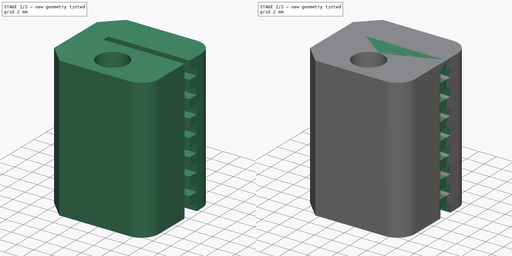
[diagram: build sequence overview — one tinted view per stage of 2, left to right]
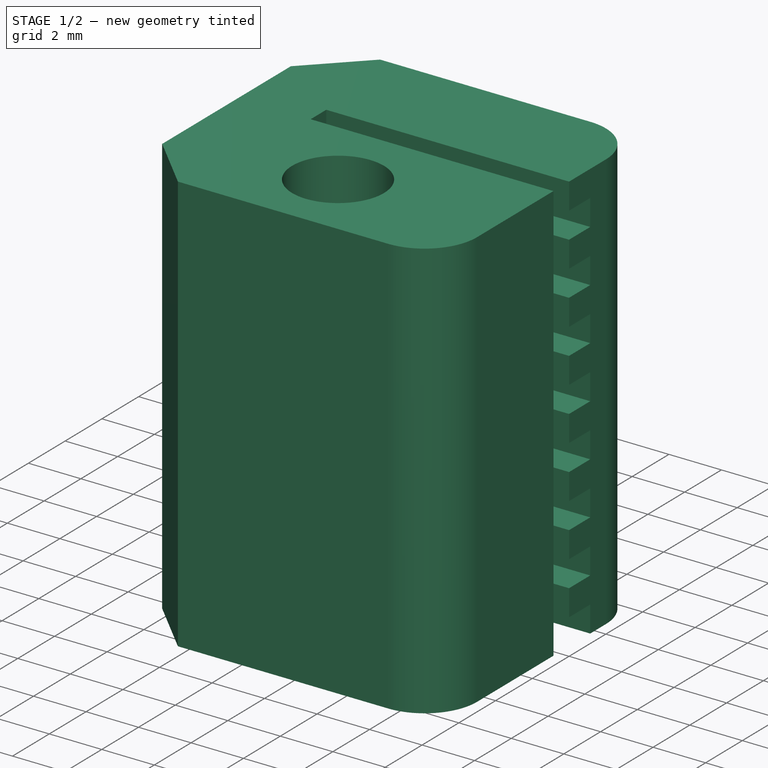
[diagram: stage 1 of 2 — iso view after this stage's code; geometry added in this stage tinted green]
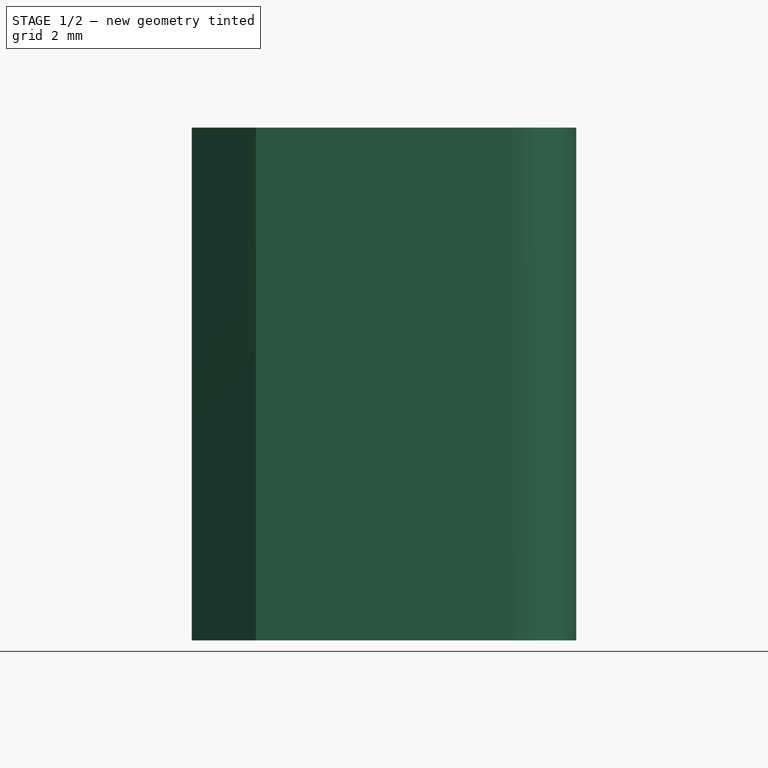
[diagram: stage 1 of 2 — front view after this stage's code; geometry added in this stage tinted green]
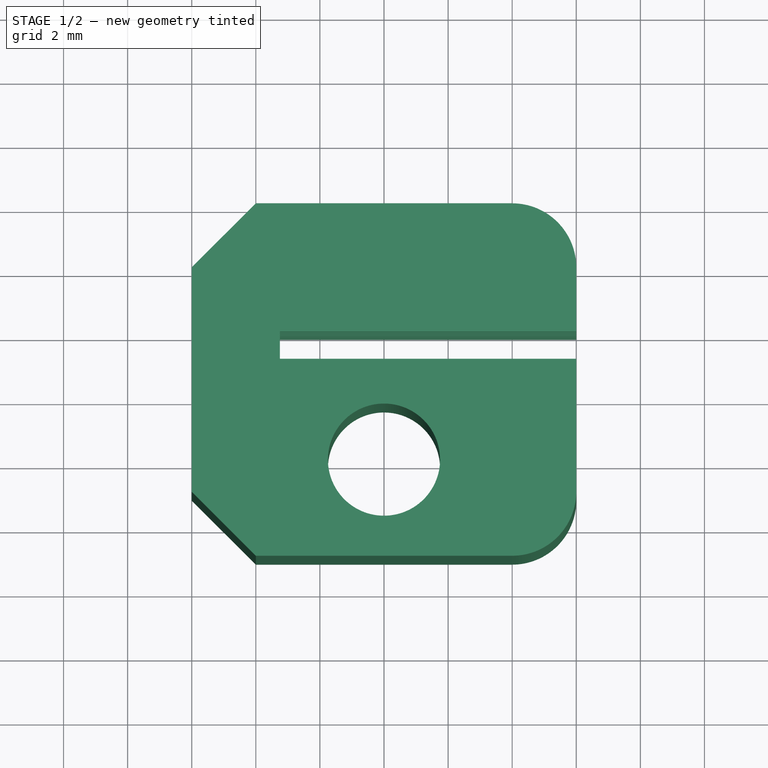
[diagram: stage 1 of 2 — top view after this stage's code; geometry added in this stage tinted green]
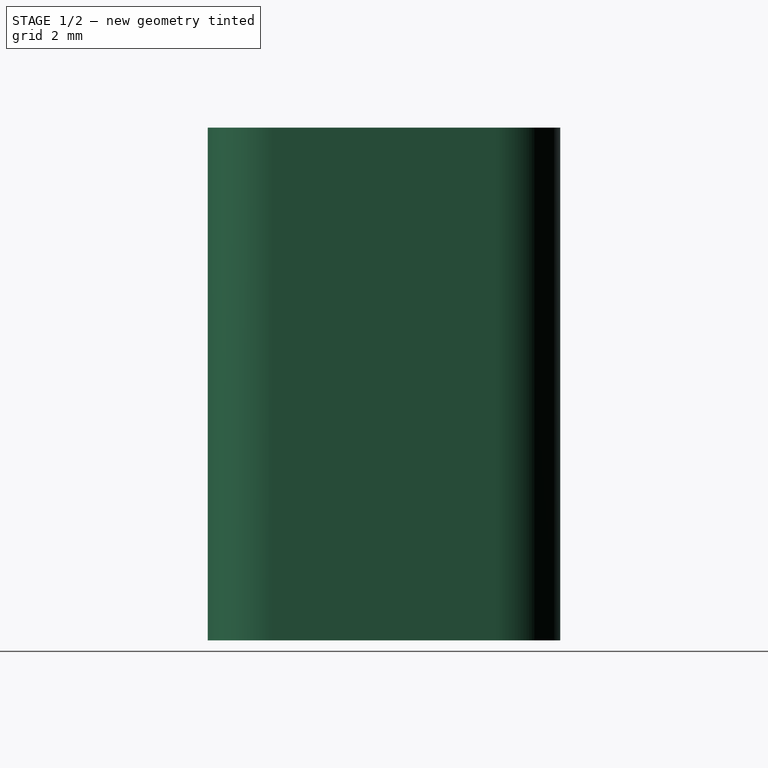
[diagram: stage 1 of 2 — right view after this stage's code; geometry added in this stage tinted green]
FCSTD DOCUMENT  (FreeCAD 1.0R39109 (Git))
Label: belt-clip
License: All rights reserved
LicenseURL: http://en.wikipedia.org/wiki/All_rights_reserved
objects: Sketcher::SketchObject×4, PartDesign::Pad×2, PartDesign::Pocket×2, PartDesign::Body×2
note: 22 computed .brp shape members not serialized (recipe doc carries the construction recipe); baked Part::Feature solids carry a one-line shape summary decoded from their .brp

FEATURE [PartDesign::Body] Body102  label="belt-clip"
  AllowCompound = false
  Group = -> [Sketch162,Pad047,Sketch163,Pocket093]
  Origin = -> Origin236
  Tip = -> Pocket093
FEATURE [Sketcher::SketchObject] Sketch164
  ArcFitTolerance = 0
  AttachmentOffset = pos=(0,0,30) rot=(0,0,1;0rad)
  AttachmentSupport = -> [XY_Plane235]
  FullyConstrained = true
  MakeInternals = false
  MapMode = 5
  Placement = pos=(0,0,30) rot=(0,0,1;0rad)
  sketch-geometry (13):
    g0: LineSegment StartX=-4 StartY=4 StartZ=0 EndX=4 EndY=4 EndZ=0
    g1: LineSegment StartX=6 StartY=2 StartZ=0 EndX=6 EndY=-5 EndZ=0
    g2: LineSegment StartX=4 StartY=-7 StartZ=0 EndX=-4 EndY=-7 EndZ=0
    g3: LineSegment StartX=-6 StartY=-5 StartZ=0 EndX=-6 EndY=2 EndZ=0
    g4: GeomPoint [constr] X=-6 Y=4 Z=0
    g5: ArcOfCircle CenterX=4 CenterY=2 CenterZ=0 NormalX=0 NormalY=0 NormalZ=1 AngleXU=0 Radius=2 StartAngle=0 EndAngle=1.5708
    g6: GeomPoint [constr] X=6 Y=4 Z=0
    g7: ArcOfCircle CenterX=4 CenterY=-5 CenterZ=0 NormalX=0 NormalY=0 NormalZ=1 AngleXU=0 Radius=2 StartAngle=4.71239 EndAngle=6.28319
    g8: GeomPoint [constr] X=6 Y=-7 Z=0
    g9: GeomPoint [constr] X=-6 Y=-7 Z=0
    g10: LineSegment StartX=-6 StartY=-5 StartZ=0 EndX=-4 EndY=-7 EndZ=0
    g11: LineSegment StartX=-6 StartY=2 StartZ=0 EndX=-4 EndY=4 EndZ=0
    g12: Circle CenterX=0 CenterY=-4 CenterZ=0 NormalX=0 NormalY=0 NormalZ=1 AngleXU=0 Radius=1.75
  constraints (32):
    c: Horizontal(g0)
    c: Vertical(g1)
    c: Vertical(g3)
    c: Symmetric(g8,g9,g-2)
    c: DistanceY(g8,g6) = 11
    c: DistanceX(g4,g6) = 12
    c: PointOnObject(g4,g0)
    c: PointOnObject(g4,g3)
    c: PointOnObject(g6,g0)
    c: PointOnObject(g6,g1)
    c: Tangent(g0,g5) = 1.5708
    c: Tangent(g1,g5) = 1.5708
    c: PointOnObject(g8,g1)
    c: PointOnObject(g8,g2)
    c: Tangent(g1,g7) = 1.5708
    c: Tangent(g2,g7) = 1.5708
    c: PointOnObject(g9,g2)
    c: PointOnObject(g9,g3)
    c: Equal(g5,g7)
    c: Radius(g5) = 2
    c: Coincident(g10,g3)
    c: Coincident(g10,g2)
    c: Coincident(g11,g3)
    c: Coincident(g11,g0)
    c: Perpendicular(g11,g10)
    c: Angle(g10) = -0.785398
    c: Vertical(g0,g2)
    c: DistanceX(g10,g10) = 2
    c: DistanceY(g-1,g0) = 4
    c: PointOnObject(g12,g-2)
    c: DistanceY(g12) = -4
    c: Diameter(g12) = 3.5
FEATURE [PartDesign::Pad] Pad048
  Direction = (0,0,1)
  Length = 16
  Length2 = 10
  Profile = -> Sketch164
  ReferenceAxis = -> Sketch164 [N_Axis]
  Reversed = true
  Suppressed = false
  Type = 0
FEATURE [Sketcher::SketchObject] Sketch165
  ArcFitTolerance = 0
  AttachmentOffset = pos=(0,0,-3.25) rot=(0,0,1;0rad)
  AttachmentSupport = -> [YZ_Plane235]
  FullyConstrained = true
  MakeInternals = false
  MapMode = 5
  Placement = pos=(-3.25,0,0) rot=(0.57735,0.57735,0.57735;2.0944rad)
  sketch-geometry (34):
    g0: LineSegment StartX=-0.85 StartY=30 StartZ=0 EndX=-0.85 EndY=14 EndZ=0
    g1: LineSegment StartX=-0.85 StartY=30 StartZ=0 EndX=1e-16 EndY=30 EndZ=0
    g2: LineSegment StartX=1e-16 StartY=30 StartZ=0 EndX=1e-16 EndY=29 EndZ=0
    g3: LineSegment StartX=1e-16 StartY=29 StartZ=0 EndX=1.15 EndY=29 EndZ=0
    g4: LineSegment StartX=1.15 StartY=29 StartZ=0 EndX=1.15 EndY=28 EndZ=0
    g5: LineSegment StartX=1.15 StartY=28 StartZ=0 EndX=0 EndY=28 EndZ=0
    g6: LineSegment StartX=1e-16 StartY=28 StartZ=0 EndX=1e-16 EndY=27 EndZ=0
    g7: LineSegment StartX=1e-16 StartY=27 StartZ=0 EndX=1.15 EndY=27 EndZ=0
    g8: LineSegment StartX=1.15 StartY=27 StartZ=0 EndX=1.15 EndY=26 EndZ=0
    g9: LineSegment StartX=1.15 StartY=26 StartZ=0 EndX=0 EndY=26 EndZ=0
    g10: LineSegment StartX=1e-16 StartY=26 StartZ=0 EndX=1e-16 EndY=25 EndZ=0
    g11: LineSegment StartX=1e-16 StartY=25 StartZ=0 EndX=1.15 EndY=25 EndZ=0
    g12: LineSegment StartX=1.15 StartY=25 StartZ=0 EndX=1.15 EndY=24 EndZ=0
    g13: LineSegment StartX=1.15 StartY=24 StartZ=0 EndX=0 EndY=24 EndZ=0
    g14: LineSegment StartX=1e-16 StartY=24 StartZ=0 EndX=1e-16 EndY=23 EndZ=0
    g15: LineSegment StartX=1e-16 StartY=23 StartZ=0 EndX=1.15 EndY=23 EndZ=0
    g16: LineSegment StartX=1.15 StartY=23 StartZ=0 EndX=1.15 EndY=22 EndZ=0
    g17: LineSegment StartX=1.15 StartY=22 StartZ=0 EndX=0 EndY=22 EndZ=0
    g18: LineSegment StartX=1e-16 StartY=22 StartZ=0 EndX=1e-16 EndY=21 EndZ=0
    g19: LineSegment StartX=1e-16 StartY=21 StartZ=0 EndX=1.15 EndY=21 EndZ=0
    g20: LineSegment StartX=1.15 StartY=21 StartZ=0 EndX=1.15 EndY=20 EndZ=0
    g21: LineSegment StartX=1.15 StartY=20 StartZ=0 EndX=0 EndY=20 EndZ=0
    g22: LineSegment StartX=1e-16 StartY=20 StartZ=0 EndX=1e-16 EndY=19 EndZ=0
    g23: LineSegment StartX=1e-16 StartY=19 StartZ=0 EndX=1.15 EndY=19 EndZ=0
    g24: LineSegment StartX=1.15 StartY=19 StartZ=0 EndX=1.15 EndY=18 EndZ=0
    g25: LineSegment StartX=1.15 StartY=18 StartZ=0 EndX=0 EndY=18 EndZ=0
    g26: LineSegment StartX=1e-16 StartY=18 StartZ=0 EndX=1e-16 EndY=17 EndZ=0
    g27: LineSegment StartX=1e-16 StartY=17 StartZ=0 EndX=1.15 EndY=17 EndZ=0
    g28: LineSegment StartX=1.15 StartY=17 StartZ=0 EndX=1.15 EndY=16 EndZ=0
    g29: LineSegment StartX=1.15 StartY=16 StartZ=0 EndX=0 EndY=16 EndZ=0
    g30: LineSegment StartX=1e-16 StartY=16 StartZ=0 EndX=1e-16 EndY=15 EndZ=0
    g31: LineSegment StartX=1e-16 StartY=15 StartZ=0 EndX=1.15 EndY=15 EndZ=0
    g32: LineSegment StartX=1.15 StartY=15 StartZ=0 EndX=1.15 EndY=14 EndZ=0
    g33: LineSegment StartX=1.15 StartY=14 StartZ=0 EndX=-0.85 EndY=14 EndZ=0
  constraints (102):
    c: Vertical(g0)
    c: Coincident(g1,g0)
    c: Horizontal(g1)
    c: Coincident(g2,g1)
    c: Vertical(g2)
    c: Coincident(g3,g2)
    c: Horizontal(g3)
    c: Coincident(g4,g3)
    c: Vertical(g4)
    c: Coincident(g5,g4)
    c: Horizontal(g5)
    c: Coincident(g6,g5)
    c: Vertical(g6)
    c: Coincident(g7,g6)
    c: Horizontal(g7)
    c: Coincident(g7,g8)
    c: Vertical(g8)
    c: Coincident(g8,g9)
    c: Horizontal(g9)
    c: Coincident(g9,g10)
    c: Vertical(g10)
    c: Coincident(g10,g11)
    c: Horizontal(g11)
    c: Coincident(g11,g12)
    c: Vertical(g12)
    c: Coincident(g12,g13)
    c: Horizontal(g13)
    c: Coincident(g13,g14)
    c: Vertical(g14)
    c: Coincident(g14,g15)
    c: Horizontal(g15)
    c: Coincident(g15,g16)
    c: Vertical(g16)
    c: Coincident(g16,g17)
    c: Horizontal(g17)
    c: Coincident(g17,g18)
    c: Vertical(g18)
    c: Coincident(g18,g19)
    c: Horizontal(g19)
    c: Coincident(g19,g20)
    c: Vertical(g20)
    c: Coincident(g20,g21)
    c: Horizontal(g21)
    c: Coincident(g21,g22)
    c: Vertical(g22)
    c: Coincident(g22,g23)
    c: Horizontal(g23)
    c: Coincident(g23,g24)
    c: Vertical(g24)
    c: Coincident(g24,g25)
    c: Horizontal(g25)
    c: Coincident(g25,g26)
    c: Vertical(g26)
    c: Coincident(g26,g27)
    c: Horizontal(g27)
    c: Coincident(g27,g28)
    c: Vertical(g28)
    c: Coincident(g28,g29)
    c: Horizontal(g29)
    c: Coincident(g29,g30)
    c: Vertical(g30)
    c: Coincident(g30,g31)
    c: Horizontal(g31)
    c: Coincident(g31,g32)
    c: Vertical(g32)
    c: Coincident(g32,g33)
    c: Horizontal(g33)
    c: Equal(g30,g26)
    c: Equal(g26,g22)
    c: Equal(g22,g18)
    c: Equal(g18,g14)
    c: Equal(g14,g10)
    c: Equal(g10,g6)
    c: Equal(g6,g2)
    c: Equal(g4,g8)
    c: Equal(g8,g12)
    c: Equal(g12,g16)
    c: Equal(g16,g20)
    c: Equal(g20,g24)
    c: Equal(g24,g28)
    c: Equal(g28,g32)
    c: Vertical(g2,g6)
    c: Vertical(g6,g10)
    c: Vertical(g10,g14)
    c: Vertical(g14,g18)
    c: Vertical(g18,g22)
    c: Vertical(g22,g26)
    c: Vertical(g26,g30)
    c: Vertical(g4,g8)
    c: Vertical(g8,g12)
    c: Vertical(g12,g16)
    c: Vertical(g16,g20)
    c: Vertical(g20,g24)
    c: Vertical(g24,g28)
    c: Vertical(g28,g32)
    c: DistanceY(g4,g1) = 2
    c: DistanceY(g2,g2) = 1
    c: Coincident(g33,g0)
    c: DistanceY(g0) = 30
    c: DistanceX(g0) = -0.85
    c: DistanceX(g3,g3) = 1.15
    c: DistanceX(g0,g3) = 2
FEATURE [PartDesign::Pocket] Pocket094
  BaseFeature = -> Pad048
  Direction = (-1,0,0)
  Length = 5
  Length2 = 5
  Profile = -> Sketch165
  ReferenceAxis = -> Sketch165 [N_Axis]
  Reversed = true
  Suppressed = false
  Type = 1
FEATURE [PartDesign::Body] Body103  label="belt-clip-reversed-teeth"
  AllowCompound = false
  Group = -> [Sketch164,Pad048,Sketch165,Pocket094]
  Origin = -> Origin237
  Tip = -> Pocket094
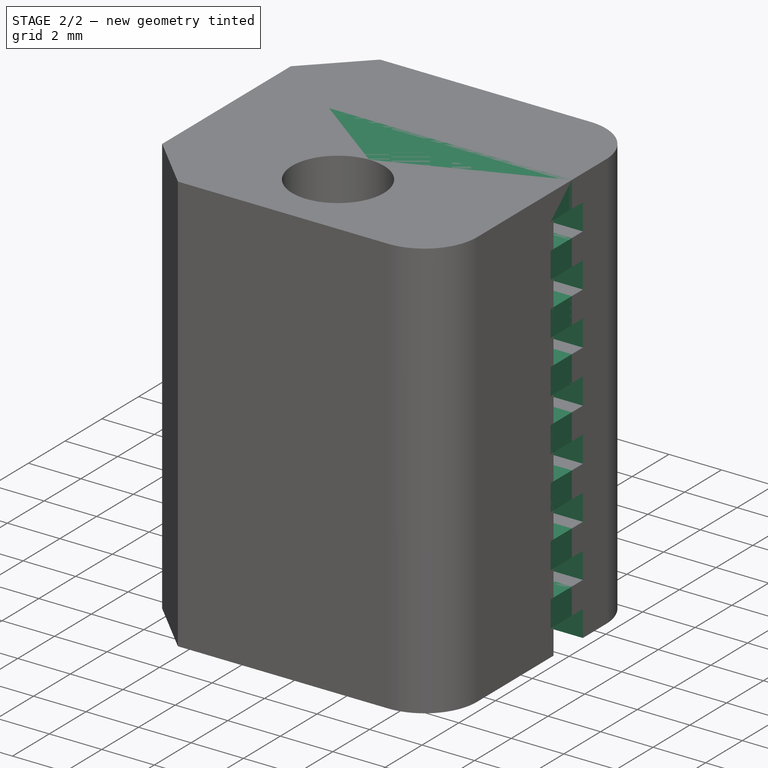
[diagram: stage 2 of 2 — iso view after this stage's code; geometry added in this stage tinted green]
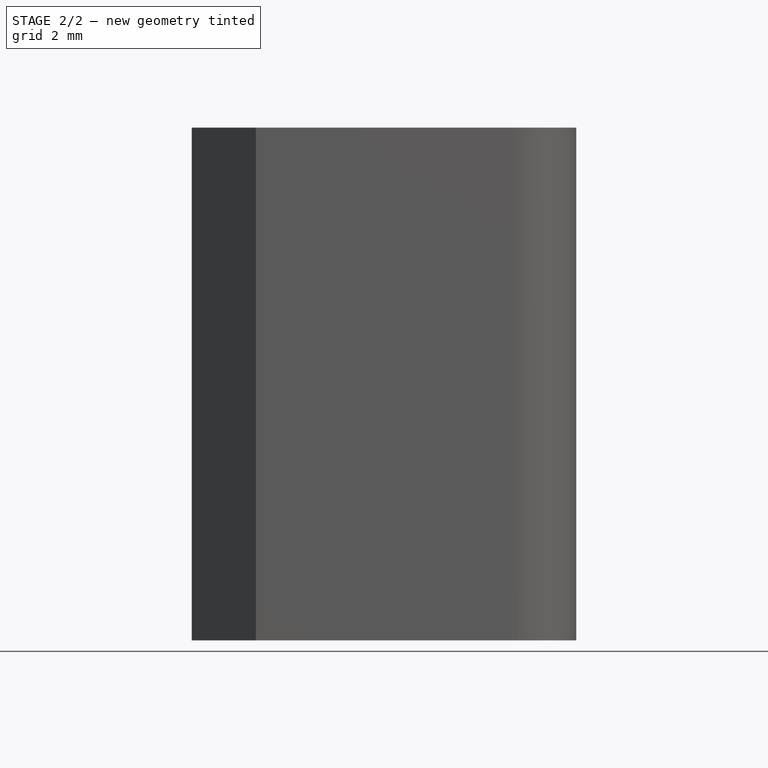
[diagram: stage 2 of 2 — front view after this stage's code; geometry added in this stage tinted green]
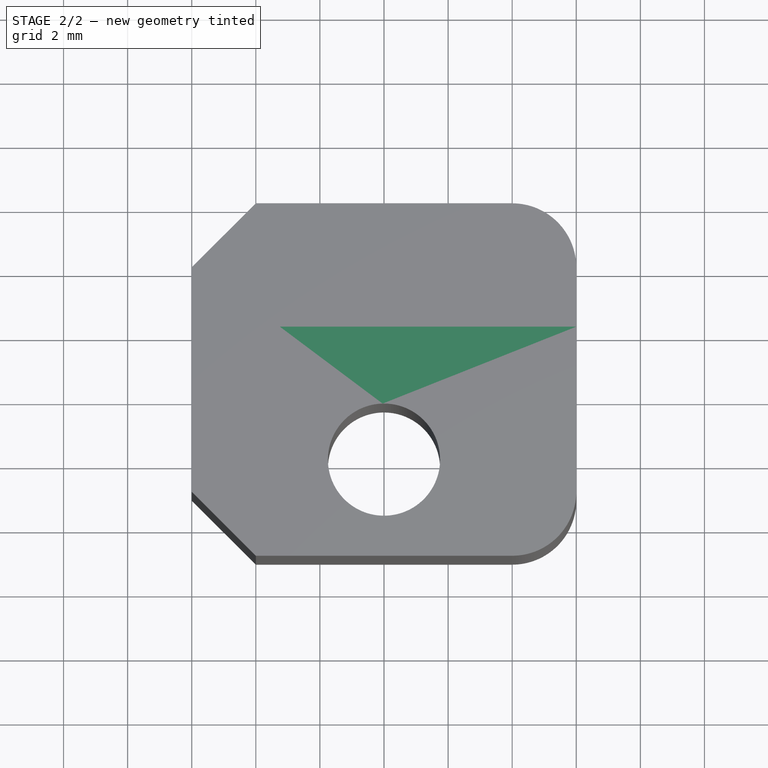
[diagram: stage 2 of 2 — top view after this stage's code; geometry added in this stage tinted green]
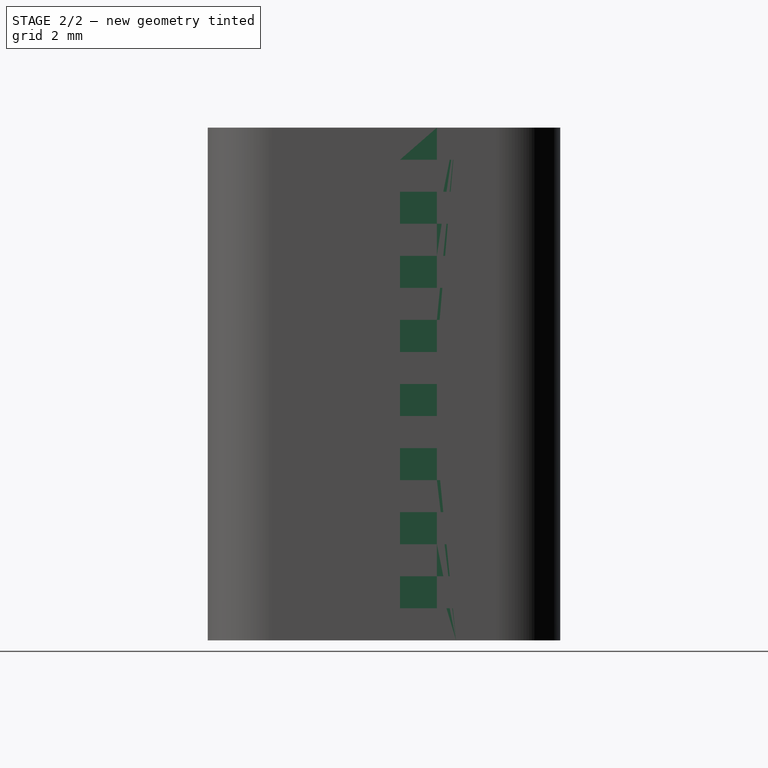
[diagram: stage 2 of 2 — right view after this stage's code; geometry added in this stage tinted green]
FEATURE [Sketcher::SketchObject] Sketch162
  ArcFitTolerance = 0
  AttachmentOffset = pos=(0,0,30) rot=(0,0,1;0rad)
  AttachmentSupport = -> [XY_Plane234]
  FullyConstrained = true
  MakeInternals = false
  MapMode = 5
  Placement = pos=(0,0,30) rot=(0,0,1;0rad)
  sketch-geometry (13):
    g0: LineSegment StartX=-4 StartY=4 StartZ=0 EndX=4 EndY=4 EndZ=0
    g1: LineSegment StartX=6 StartY=2 StartZ=0 EndX=6 EndY=-5 EndZ=0
    g2: LineSegment StartX=4 StartY=-7 StartZ=0 EndX=-4 EndY=-7 EndZ=0
    g3: LineSegment StartX=-6 StartY=-5 StartZ=0 EndX=-6 EndY=2 EndZ=0
    g4: GeomPoint [constr] X=-6 Y=4 Z=0
    g5: ArcOfCircle CenterX=4 CenterY=2 CenterZ=0 NormalX=0 NormalY=0 NormalZ=1 AngleXU=0 Radius=2 StartAngle=0 EndAngle=1.5708
    g6: GeomPoint [constr] X=6 Y=4 Z=0
    g7: ArcOfCircle CenterX=4 CenterY=-5 CenterZ=0 NormalX=0 NormalY=0 NormalZ=1 AngleXU=0 Radius=2 StartAngle=4.71239 EndAngle=6.28319
    g8: GeomPoint [constr] X=6 Y=-7 Z=0
    g9: GeomPoint [constr] X=-6 Y=-7 Z=0
    g10: LineSegment StartX=-6 StartY=-5 StartZ=0 EndX=-4 EndY=-7 EndZ=0
    g11: LineSegment StartX=-6 StartY=2 StartZ=0 EndX=-4 EndY=4 EndZ=0
    g12: Circle CenterX=0 CenterY=-4 CenterZ=0 NormalX=0 NormalY=0 NormalZ=1 AngleXU=0 Radius=1.75
  constraints (32):
    c: Horizontal(g0)
    c: Vertical(g1)
    c: Vertical(g3)
    c: Symmetric(g8,g9,g-2)
    c: DistanceY(g8,g6) = 11
    c: DistanceX(g4,g6) = 12
    c: PointOnObject(g4,g0)
    c: PointOnObject(g4,g3)
    c: PointOnObject(g6,g0)
    c: PointOnObject(g6,g1)
    c: Tangent(g0,g5) = 1.5708
    c: Tangent(g1,g5) = 1.5708
    c: PointOnObject(g8,g1)
    c: PointOnObject(g8,g2)
    c: Tangent(g1,g7) = 1.5708
    c: Tangent(g2,g7) = 1.5708
    c: PointOnObject(g9,g2)
    c: PointOnObject(g9,g3)
    c: Equal(g5,g7)
    c: Radius(g5) = 2
    c: Coincident(g10,g3)
    c: Coincident(g10,g2)
    c: Coincident(g11,g3)
    c: Coincident(g11,g0)
    c: Perpendicular(g11,g10)
    c: Angle(g10) = -0.785398
    c: Vertical(g0,g2)
    c: DistanceX(g10,g10) = 2
    c: DistanceY(g-1,g0) = 4
    c: PointOnObject(g12,g-2)
    c: DistanceY(g12) = -4
    c: Diameter(g12) = 3.5
FEATURE [PartDesign::Pad] Pad047
  Direction = (0,0,1)
  Length = 16
  Length2 = 10
  Profile = -> Sketch162
  ReferenceAxis = -> Sketch162 [N_Axis]
  Reversed = true
  Suppressed = false
  Type = 0
FEATURE [Sketcher::SketchObject] Sketch163
  ArcFitTolerance = 0
  AttachmentOffset = pos=(0,0,-3.25) rot=(0,0,1;0rad)
  AttachmentSupport = -> [YZ_Plane234]
  FullyConstrained = true
  MakeInternals = false
  MapMode = 5
  Placement = pos=(-3.25,0,0) rot=(0.57735,0.57735,0.57735;2.0944rad)
  sketch-geometry (34):
    g0: LineSegment StartX=0.75 StartY=30 StartZ=0 EndX=0.75 EndY=14 EndZ=0
    g1: LineSegment StartX=0.75 StartY=30 StartZ=0 EndX=0.15 EndY=30 EndZ=0
    g2: LineSegment StartX=0.15 StartY=30 StartZ=0 EndX=0.15 EndY=29 EndZ=0
    g3: LineSegment StartX=0.15 StartY=29 StartZ=0 EndX=-1 EndY=29 EndZ=0
    g4: LineSegment StartX=-1 StartY=29 StartZ=0 EndX=-1 EndY=28 EndZ=0
    g5: LineSegment StartX=-1 StartY=28 StartZ=0 EndX=0.15 EndY=28 EndZ=0
    g6: LineSegment StartX=0.15 StartY=28 StartZ=0 EndX=0.15 EndY=27 EndZ=0
    g7: LineSegment StartX=0.15 StartY=27 StartZ=0 EndX=-1 EndY=27 EndZ=0
    g8: LineSegment StartX=-1 StartY=27 StartZ=0 EndX=-1 EndY=26 EndZ=0
    g9: LineSegment StartX=-1 StartY=26 StartZ=0 EndX=0.15 EndY=26 EndZ=0
    g10: LineSegment StartX=0.15 StartY=26 StartZ=0 EndX=0.15 EndY=25 EndZ=0
    g11: LineSegment StartX=0.15 StartY=25 StartZ=0 EndX=-1 EndY=25 EndZ=0
    g12: LineSegment StartX=-1 StartY=25 StartZ=0 EndX=-1 EndY=24 EndZ=0
    g13: LineSegment StartX=-1 StartY=24 StartZ=0 EndX=0.15 EndY=24 EndZ=0
    g14: LineSegment StartX=0.15 StartY=24 StartZ=0 EndX=0.15 EndY=23 EndZ=0
    g15: LineSegment StartX=0.15 StartY=23 StartZ=0 EndX=-1 EndY=23 EndZ=0
    g16: LineSegment StartX=-1 StartY=23 StartZ=0 EndX=-1 EndY=22 EndZ=0
    g17: LineSegment StartX=-1 StartY=22 StartZ=0 EndX=0.15 EndY=22 EndZ=0
    g18: LineSegment StartX=0.15 StartY=22 StartZ=0 EndX=0.15 EndY=21 EndZ=0
    g19: LineSegment StartX=0.15 StartY=21 StartZ=0 EndX=-1 EndY=21 EndZ=0
    g20: LineSegment StartX=-1 StartY=21 StartZ=0 EndX=-1 EndY=20 EndZ=0
    g21: LineSegment StartX=-1 StartY=20 StartZ=0 EndX=0.15 EndY=20 EndZ=0
    g22: LineSegment StartX=0.15 StartY=20 StartZ=0 EndX=0.15 EndY=19 EndZ=0
    g23: LineSegment StartX=0.15 StartY=19 StartZ=0 EndX=-1 EndY=19 EndZ=0
    g24: LineSegment StartX=-1 StartY=19 StartZ=0 EndX=-1 EndY=18 EndZ=0
    g25: LineSegment StartX=-1 StartY=18 StartZ=0 EndX=0.15 EndY=18 EndZ=0
    g26: LineSegment StartX=0.15 StartY=18 StartZ=0 EndX=0.15 EndY=17 EndZ=0
    g27: LineSegment StartX=0.15 StartY=17 StartZ=0 EndX=-1 EndY=17 EndZ=0
    g28: LineSegment StartX=-1 StartY=17 StartZ=0 EndX=-1 EndY=16 EndZ=0
    g29: LineSegment StartX=-1 StartY=16 StartZ=0 EndX=0.15 EndY=16 EndZ=0
    g30: LineSegment StartX=0.15 StartY=16 StartZ=0 EndX=0.15 EndY=15 EndZ=0
    g31: LineSegment StartX=0.15 StartY=15 StartZ=0 EndX=-1 EndY=15 EndZ=0
    g32: LineSegment StartX=-1 StartY=15 StartZ=0 EndX=-1 EndY=14 EndZ=0
    g33: LineSegment StartX=-1 StartY=14 StartZ=0 EndX=0.75 EndY=14 EndZ=0
  constraints (102):
    c: Vertical(g0)
    c: Coincident(g1,g0)
    c: Horizontal(g1)
    c: Coincident(g2,g1)
    c: Vertical(g2)
    c: Coincident(g3,g2)
    c: Horizontal(g3)
    c: Coincident(g4,g3)
    c: Vertical(g4)
    c: Coincident(g5,g4)
    c: Horizontal(g5)
    c: Coincident(g6,g5)
    c: Vertical(g6)
    c: Coincident(g7,g6)
    c: Horizontal(g7)
    c: Coincident(g7,g8)
    c: Vertical(g8)
    c: Coincident(g8,g9)
    c: Horizontal(g9)
    c: Coincident(g9,g10)
    c: Vertical(g10)
    c: Coincident(g10,g11)
    c: Horizontal(g11)
    c: Coincident(g11,g12)
    c: Vertical(g12)
    c: Coincident(g12,g13)
    c: Horizontal(g13)
    c: Coincident(g13,g14)
    c: Vertical(g14)
    c: Coincident(g14,g15)
    c: Horizontal(g15)
    c: Coincident(g15,g16)
    c: Vertical(g16)
    c: Coincident(g16,g17)
    c: Horizontal(g17)
    c: Coincident(g17,g18)
    c: Vertical(g18)
    c: Coincident(g18,g19)
    c: Horizontal(g19)
    c: Coincident(g19,g20)
    c: Vertical(g20)
    c: Coincident(g20,g21)
    c: Horizontal(g21)
    c: Coincident(g21,g22)
    c: Vertical(g22)
    c: Coincident(g22,g23)
    c: Horizontal(g23)
    c: Coincident(g23,g24)
    c: Vertical(g24)
    c: Coincident(g24,g25)
    c: Horizontal(g25)
    c: Coincident(g25,g26)
    c: Vertical(g26)
    c: Coincident(g26,g27)
    c: Horizontal(g27)
    c: Coincident(g27,g28)
    c: Vertical(g28)
    c: Coincident(g28,g29)
    c: Horizontal(g29)
    c: Coincident(g29,g30)
    c: Vertical(g30)
    c: Coincident(g30,g31)
    c: Horizontal(g31)
    c: Coincident(g31,g32)
    c: Vertical(g32)
    c: Coincident(g32,g33)
    c: Horizontal(g33)
    c: Equal(g30,g26)
    c: Equal(g26,g22)
    c: Equal(g22,g18)
    c: Equal(g18,g14)
    c: Equal(g14,g10)
    c: Equal(g10,g6)
    c: Equal(g6,g2)
    c: Equal(g4,g8)
    c: Equal(g8,g12)
    c: Equal(g12,g16)
    c: Equal(g16,g20)
    c: Equal(g20,g24)
    c: Equal(g24,g28)
    c: Equal(g28,g32)
    c: Vertical(g2,g6)
    c: Vertical(g6,g10)
    c: Vertical(g10,g14)
    c: Vertical(g14,g18)
    c: Vertical(g18,g22)
    c: Vertical(g22,g26)
    c: Vertical(g26,g30)
    c: Vertical(g4,g8)
    c: Vertical(g8,g12)
    c: Vertical(g12,g16)
    c: Vertical(g16,g20)
    c: Vertical(g20,g24)
    c: Vertical(g24,g28)
    c: Vertical(g28,g32)
    c: DistanceY(g4,g1) = 2
    c: DistanceY(g2,g2) = 1
    c: Coincident(g33,g0)
    c: DistanceY(g0) = 30
    c: DistanceX(g0) = 0.75
    c: DistanceX(g3) = -1
    c: DistanceX(g3,g3) = 1.15
FEATURE [PartDesign::Pocket] Pocket093
  BaseFeature = -> Pad047
  Direction = (-1,0,0)
  Length = 5
  Length2 = 5
  Profile = -> Sketch163
  ReferenceAxis = -> Sketch163 [N_Axis]
  Reversed = true
  Suppressed = false
  Type = 1
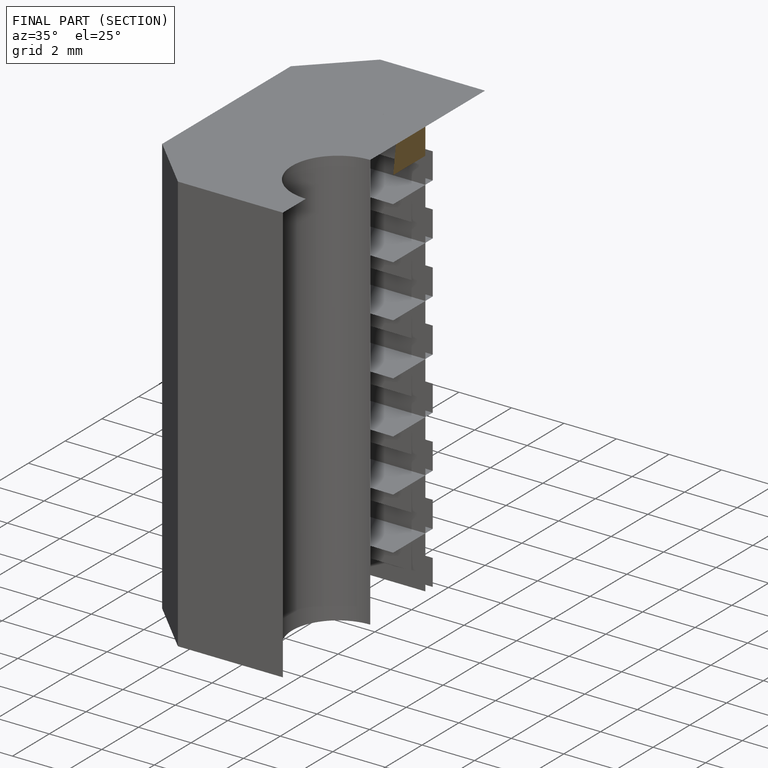
[diagram: finished part — half-section view (interior)]
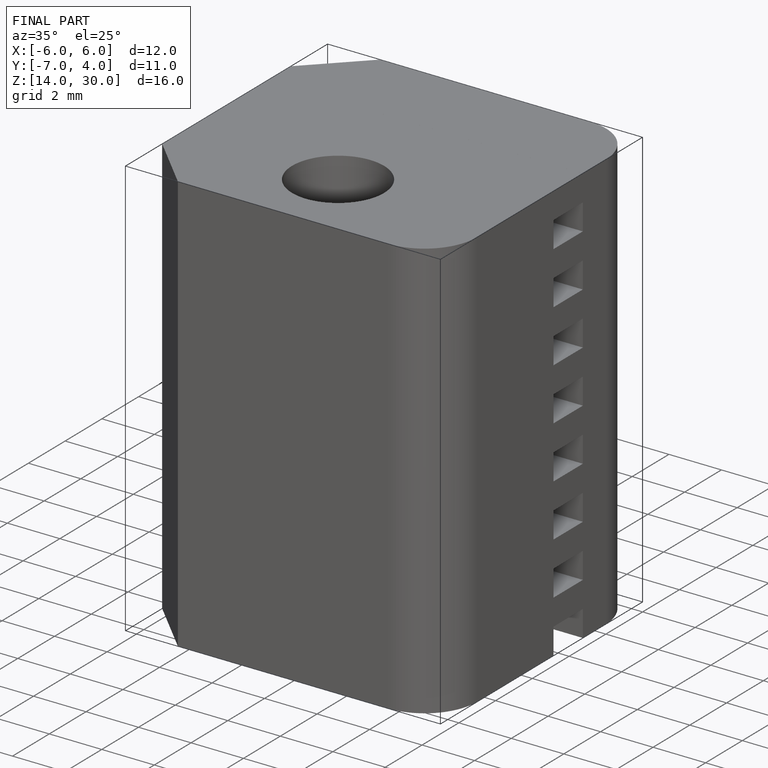
[diagram: finished part — iso view with bounding-box wireframe]
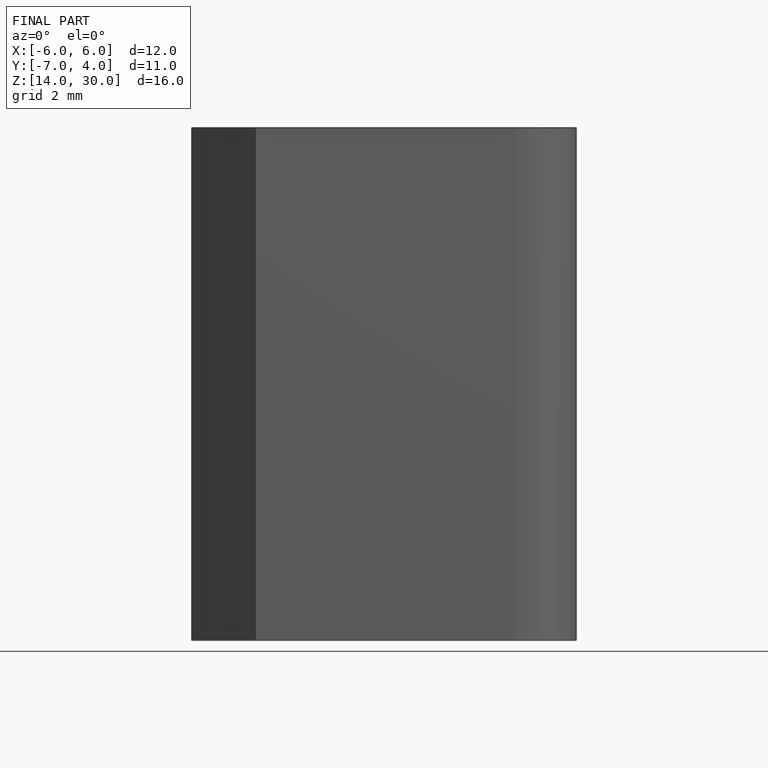
[diagram: finished part — front view with bounding-box wireframe]
